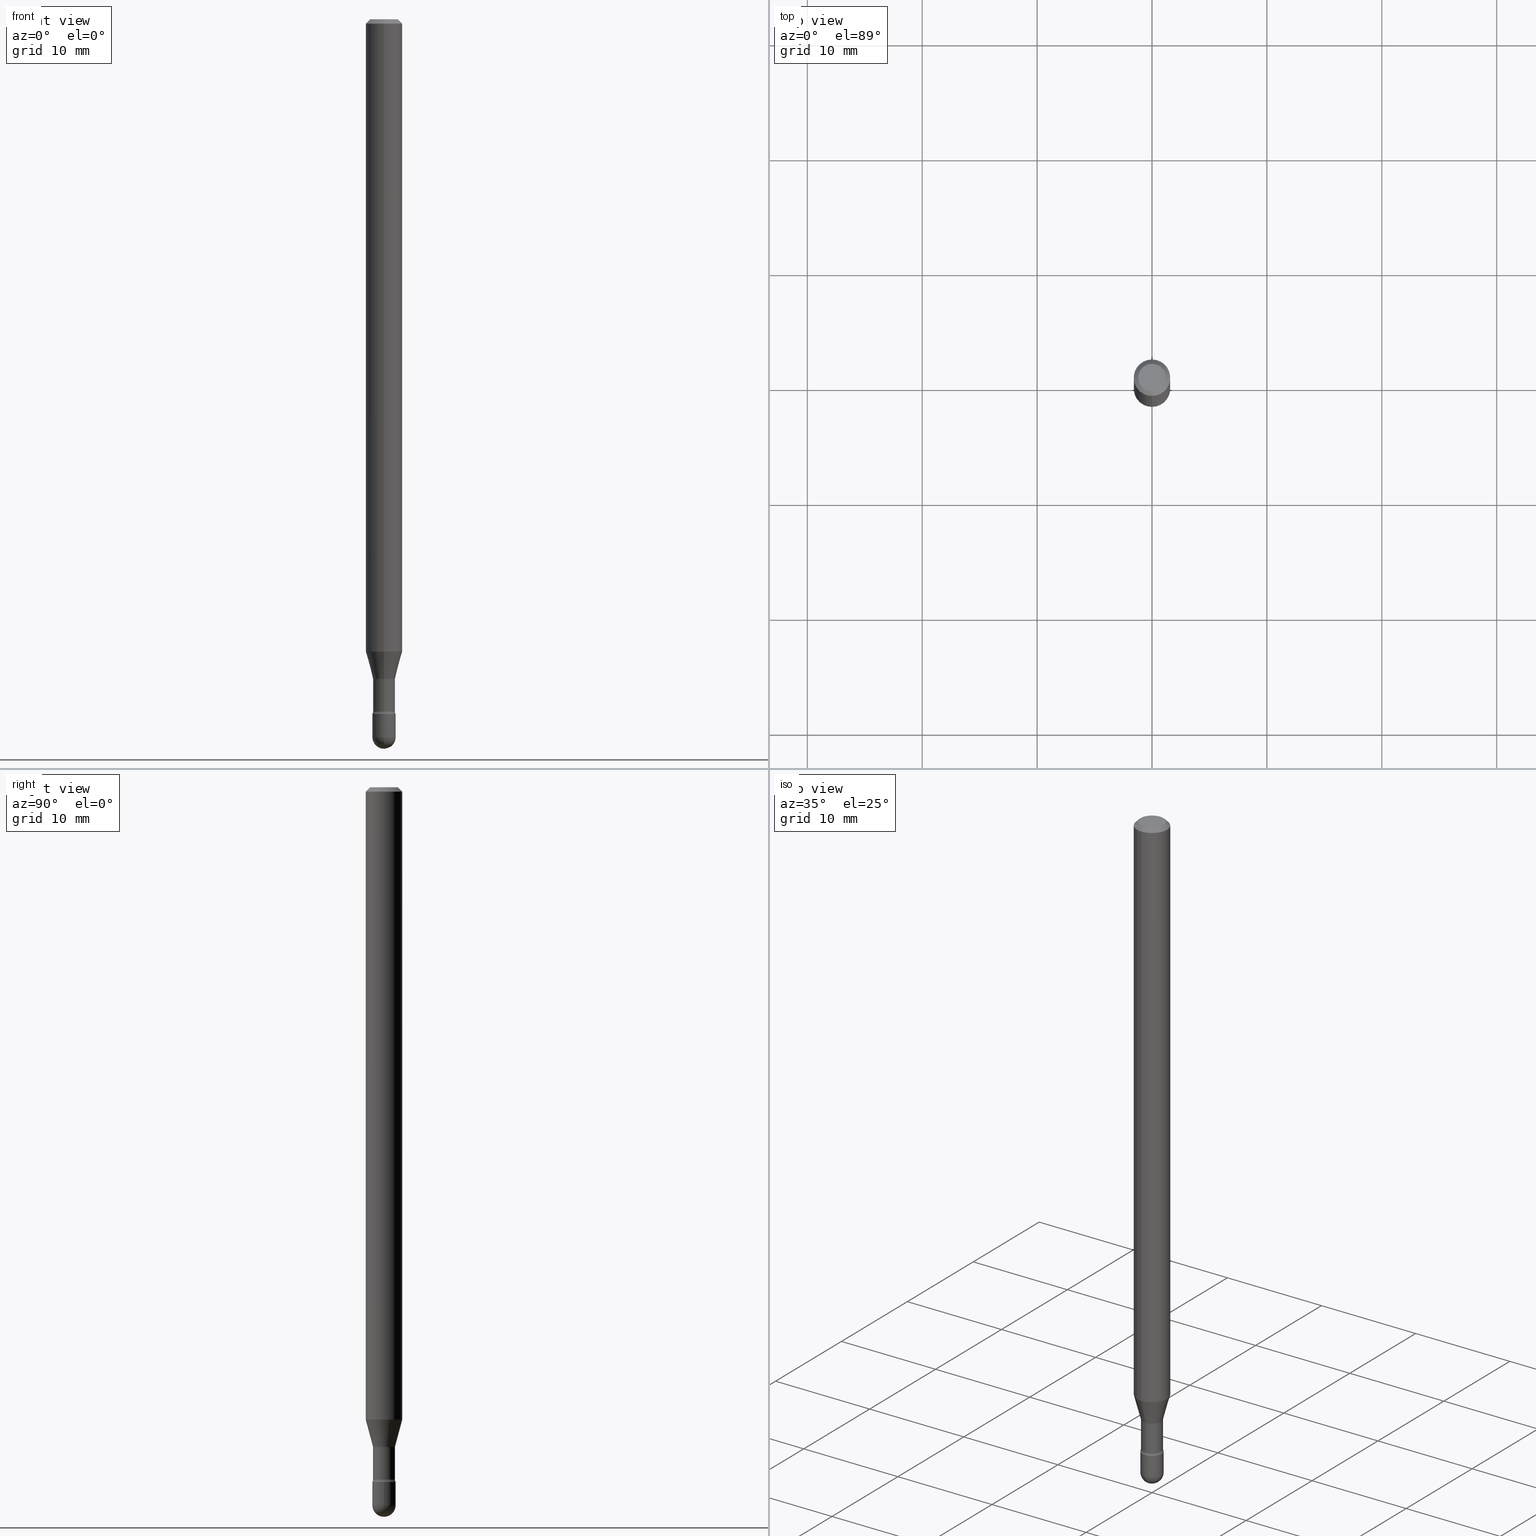
[diagram: canonical four-view strip — front | top / right | iso, engineering-drawing reading convention]
A machine part, canonical four-view strip (front | top / right | iso — engineering-drawing reading convention). The complete STEP part file that produces these views, byte-faithful:
ISO-10303-21;
HEADER;
FILE_DESCRIPTION (( 'STEP AP203' ),
    '1' );
FILE_NAME ('03823.STEP',
    '2024-04-09T20:37:01',
    ( '' ),
    ( '' ),
    'SwSTEP 2.0',
    'SolidWorks 2023',
    '' );
FILE_SCHEMA (( 'CONFIG_CONTROL_DESIGN' ));
ENDSEC;

DATA;
#1 = PERSON_AND_ORGANIZATION_ROLE ( 'design_supplier' ) ;
#2 = VERTEX_POINT ( 'NONE', #389 ) ;
#3 = EDGE_LOOP ( 'NONE', ( #249, #336, #305, #384 ) ) ;
#4 = ADVANCED_FACE ( 'NONE', ( #182 ), #362, .T. ) ;
#5 = EDGE_CURVE ( 'NONE', #97, #376, #102, .T. ) ;
#6 = ORIENTED_EDGE ( 'NONE', *, *, #70, .F. ) ;
#7 = MANIFOLD_SOLID_BREP ( 'Body-Move/Copy2[2]', #530 ) ;
#8 = DIRECTION ( 'NONE',  ( -6.982962677686266711E-15, -1.000000000000000000, 3.491484914929781509E-15 ) ) ;
#9 = VECTOR ( 'NONE', #114, 39.37007874015748143 ) ;
#10 = CC_DESIGN_SECURITY_CLASSIFICATION ( #231, ( #141 ) ) ;
#11 = PERSON_AND_ORGANIZATION_ROLE ( 'classification_officer' ) ;
#12 = ORIENTED_EDGE ( 'NONE', *, *, #112, .F. ) ;
#13 = EDGE_CURVE ( 'NONE', #565, #79, #402, .T. ) ;
#14 =( NAMED_UNIT ( * ) SI_UNIT ( $, .STERADIAN. ) SOLID_ANGLE_UNIT ( ) );
#15 = LOCAL_TIME ( 16, 37, 1.000000000000000000, #320 ) ;
#16 = DIRECTION ( 'NONE',  ( -1.000000000000000000, 6.982962677686265922E-15, -4.883557194083112340E-29 ) ) ;
#17 = VERTEX_POINT ( 'NONE', #424 ) ;
#18 = APPLICATION_PROTOCOL_DEFINITION ( 'international standard', 'config_control_design', 1994, #268 ) ;
#19 = DIRECTION ( 'NONE',  ( -6.982962677686265922E-15, -1.000000000000000000, 3.491484914929780720E-15 ) ) ;
#20 = MANIFOLD_SOLID_BREP ( 'Body-Move/Copy2[1]', #494 ) ;
#21 = DIRECTION ( 'NONE',  ( 1.839019923739600710E-15, 0.2588190451025250138, 0.9659258262890670910 ) ) ;
#22 = DIRECTION ( 'NONE',  ( 7.105427357601001859E-15, 1.000000000000000000, 0.000000000000000000 ) ) ;
#23 = AXIS2_PLACEMENT_3D ( 'NONE', #192, #419, #188 ) ;
#24 = DIRECTION ( 'NONE',  ( 2.445466309017186132E-29, -3.491484914929780326E-15, -1.000000000000000000 ) ) ;
#25 = LOCAL_TIME ( 16, 37, 1.000000000000000000, #414 ) ;
#26 = DIRECTION ( 'NONE',  ( -2.445466309017186132E-29, 3.491484914929780720E-15, 1.000000000000000000 ) ) ;
#27 = DIRECTION ( 'NONE',  ( 1.000000000000000000, -6.982962677686265922E-15, 4.876176775795935793E-29 ) ) ;
#28 = ORIENTED_EDGE ( 'NONE', *, *, #68, .F. ) ;
#29 = DIRECTION ( 'NONE',  ( 1.000000000000000000, -6.982962677686260400E-15, 0.000000000000000000 ) ) ;
#30 = EDGE_CURVE ( 'NONE', #38, #348, #160, .T. ) ;
#31 = DIRECTION ( 'NONE',  ( -2.445466309017186132E-29, 3.491484914929780720E-15, 1.000000000000000000 ) ) ;
#32 = ORIENTED_EDGE ( 'NONE', *, *, #495, .F. ) ;
#33 = DIRECTION ( 'NONE',  ( -1.000000000000000000, 7.105427357601001070E-15, -4.926315508542082329E-29 ) ) ;
#34 = DIRECTION ( 'NONE',  ( -2.445466309017186132E-29, 3.491484914929780720E-15, 1.000000000000000000 ) ) ;
#35 = DIRECTION ( 'NONE',  ( -1.000000000000000000, 6.982962677686265922E-15, -4.883557194083112340E-29 ) ) ;
#36 = CIRCLE ( 'NONE', #435, 0.01499999999999995955 ) ;
#37 = CIRCLE ( 'NONE', #536, 0.03760000000000000842 ) ;
#38 = VERTEX_POINT ( 'NONE', #508 ) ;
#39 = DIRECTION ( 'NONE',  ( 6.982962677686265922E-15, 1.000000000000000000, -3.483106191921935554E-15 ) ) ;
#40 = ORIENTED_EDGE ( 'NONE', *, *, #100, .F. ) ;
#41 = DIRECTION ( 'NONE',  ( -2.445466309017186132E-29, 3.491484914929780720E-15, 1.000000000000000000 ) ) ;
#42 = LINE ( 'NONE', #388, #117 ) ;
#43 = EDGE_LOOP ( 'NONE', ( #560, #130, #286, #89 ) ) ;
#44 = DIRECTION ( 'NONE',  ( -6.982962677686265922E-15, -1.000000000000000000, 3.491484914929780720E-15 ) ) ;
#45 = AXIS2_PLACEMENT_3D ( 'NONE', #173, #257, #95 ) ;
#46 = CARTESIAN_POINT ( 'NONE',  ( -1.169113584055446105E-44, 1.669184350826100908E-30, 4.780733988912460139E-16 ) ) ;
#47 = DIRECTION ( 'NONE',  ( -6.982962677686265922E-15, -1.000000000000000000, 3.491484914929781903E-15 ) ) ;
#48 = CC_DESIGN_DATE_AND_TIME_ASSIGNMENT ( #461, #72, ( #55 ) ) ;
#49 = ORIENTED_EDGE ( 'NONE', *, *, #219, .F. ) ;
#50 = VERTEX_POINT ( 'NONE', #65 ) ;
#51 = AXIS2_PLACEMENT_3D ( 'NONE', #157, #191, #111 ) ;
#52 = AXIS2_PLACEMENT_3D ( 'NONE', #104, #26, #503 ) ;
#53 = EDGE_CURVE ( 'NONE', #515, #264, #91, .T. ) ;
#54 = FACE_OUTER_BOUND ( 'NONE', #439, .T. ) ;
#55 = PRODUCT_DEFINITION ( 'UNKNOWN', '', #141, #86 ) ;
#56 = DIRECTION ( 'NONE',  ( 6.982962677686265922E-15, 1.000000000000000000, -6.829619984160649566E-15 ) ) ;
#57 = CIRCLE ( 'NONE', #51, 0.03999999999999999389 ) ;
#58 = ORIENTED_EDGE ( 'NONE', *, *, #469, .T. ) ;
#59 =( CONVERSION_BASED_UNIT ( 'INCH', #183 ) LENGTH_UNIT ( ) NAMED_UNIT ( #245 ) );
#60 = CARTESIAN_POINT ( 'NONE',  ( -4.364351673553388650E-16, -0.06250000000000759115, -2.167071934891535268 ) ) ;
#61 = ADVANCED_FACE ( 'NONE', ( #552 ), #485, .F. ) ;
#62 = DIRECTION ( 'NONE',  ( -6.982962677686266711E-15, -1.000000000000000000, 3.491484914929781509E-15 ) ) ;
#63 = PERSON_AND_ORGANIZATION ( #528, #149 ) ;
#64 = DIRECTION ( 'NONE',  ( -6.982962677686265922E-15, -1.000000000000000000, 3.491484914929779537E-15 ) ) ;
#65 = CARTESIAN_POINT ( 'NONE',  ( -2.793185071073923519E-16, -0.04000000000000827893, -2.379999999999999893 ) ) ;
#66 = PERSON_AND_ORGANIZATION ( #528, #149 ) ;
#67 = DIRECTION ( 'NONE',  ( -1.000000000000000000, 6.982962677686265922E-15, -4.883557194083112340E-29 ) ) ;
#68 = EDGE_CURVE ( 'NONE', #405, #465, #319, .T. ) ;
#69 = DIRECTION ( 'NONE',  ( -6.982962677686265922E-15, -1.000000000000000000, 0.000000000000000000 ) ) ;
#70 = EDGE_CURVE ( 'NONE', #515, #50, #36, .T. ) ;
#71 = VERTEX_POINT ( 'NONE', #109 ) ;
#72 = DATE_TIME_ROLE ( 'creation_date' ) ;
#73 = CARTESIAN_POINT ( 'NONE',  ( 6.015853263215436432E-29, -8.589044093554138346E-15, -2.459999999999999964 ) ) ;
#74 = DIRECTION ( 'NONE',  ( -6.982962677686265922E-15, -1.000000000000000000, 3.491484914929779537E-15 ) ) ;
#75 = ORIENTED_EDGE ( 'NONE', *, *, #265, .F. ) ;
#76 = PERSON_AND_ORGANIZATION_ROLE ( 'design_owner' ) ;
#77 = DIRECTION ( 'NONE',  ( -7.105427357601000281E-15, -1.000000000000000000, 0.000000000000000000 ) ) ;
#78 = CARTESIAN_POINT ( 'NONE',  ( 5.820209815460903594E-29, -8.309734097532877246E-15, -2.379999999999999893 ) ) ;
#79 = VERTEX_POINT ( 'NONE', #514 ) ;
#80 = CARTESIAN_POINT ( 'NONE',  ( 5.800312587032241644E-29, -8.281309132162736146E-15, -2.371861204020250025 ) ) ;
#81 = CARTESIAN_POINT ( 'NONE',  ( 5.820209815460903594E-29, -8.309734097532877246E-15, -2.379999999999999893 ) ) ;
#82 = AXIS2_PLACEMENT_3D ( 'NONE', #144, #143, #22 ) ;
#83 = CC_DESIGN_PERSON_AND_ORGANIZATION_ASSIGNMENT ( #315, #99, ( #141 ) ) ;
#84 = ORIENTED_EDGE ( 'NONE', *, *, #279, .F. ) ;
#85 = EDGE_CURVE ( 'NONE', #50, #258, #358, .T. ) ;
#86 = DESIGN_CONTEXT ( 'detailed design', #300, 'design' ) ;
#87 = EDGE_LOOP ( 'NONE', ( #299, #350, #532, #205 ) ) ;
#88 = LINE ( 'NONE', #472, #382 ) ;
#89 = ORIENTED_EDGE ( 'NONE', *, *, #538, .F. ) ;
#90 = PERSON_AND_ORGANIZATION ( #528, #149 ) ;
#91 = CIRCLE ( 'NONE', #211, 0.03760000000000005005 ) ;
#92 = CONICAL_SURFACE ( 'NONE', #52, 0.03811111260566397985, 0.2617993877991502960 ) ;
#93 = ORIENTED_EDGE ( 'NONE', *, *, #442, .T. ) ;
#94 = DIRECTION ( 'NONE',  ( 1.000000000000000000, -6.982962677686265922E-15, 4.876176775795935793E-29 ) ) ;
#95 = DIRECTION ( 'NONE',  ( 6.982962677686266711E-15, 1.000000000000000000, 0.000000000000000000 ) ) ;
#96 = COORDINATED_UNIVERSAL_TIME_OFFSET ( 5, 0, .BEHIND. ) ;
#97 = VERTEX_POINT ( 'NONE', #549 ) ;
#98 = CARTESIAN_POINT ( 'NONE',  ( 2.023534698755883827E-45, -2.889111307869081721E-31, -8.274686220743022469E-17 ) ) ;
#99 = PERSON_AND_ORGANIZATION_ROLE ( 'creator' ) ;
#100 = EDGE_CURVE ( 'NONE', #264, #17, #196, .T. ) ;
#101 = ORIENTED_EDGE ( 'NONE', *, *, #364, .F. ) ;
#102 = CIRCLE ( 'NONE', #459, 0.06250000000000000000 ) ;
#103 = AXIS2_PLACEMENT_3D ( 'NONE', #394, #272, #94 ) ;
#104 = CARTESIAN_POINT ( 'NONE',  ( 5.522089135765106853E-29, -7.884095906506312946E-15, -2.258092501787273498 ) ) ;
#105 = ORIENTED_EDGE ( 'NONE', *, *, #520, .T. ) ;
#106 = CARTESIAN_POINT ( 'NONE',  ( 5.531583134589060963E-29, -7.897650848381394584E-15, -2.261974787463811420 ) ) ;
#107 = AXIS2_PLACEMENT_3D ( 'NONE', #539, #146, #326 ) ;
#108 = CIRCLE ( 'NONE', #239, 0.06250000000000000000 ) ;
#109 = CARTESIAN_POINT ( 'NONE',  ( -2.661284769303949720E-16, -0.03811111260567186937, -2.258092501787273498 ) ) ;
#110 = FACE_OUTER_BOUND ( 'NONE', #393, .T. ) ;
#111 = DIRECTION ( 'NONE',  ( 1.000000000000000000, -6.982962677686260400E-15, 0.000000000000000000 ) ) ;
#112 = EDGE_CURVE ( 'NONE', #167, #405, #564, .T. ) ;
#113 = CARTESIAN_POINT ( 'NONE',  ( -0.03999999999999999389, -8.165167745696373001E-15, -2.459999999999999964 ) ) ;
#114 = DIRECTION ( 'NONE',  ( -2.445466309017185852E-29, 3.491484914929780326E-15, 1.000000000000000000 ) ) ;
#115 = EDGE_LOOP ( 'NONE', ( #174, #84, #342, #449 ) ) ;
#116 = SPHERICAL_SURFACE ( 'NONE', #221, 0.04000000000000004940 ) ;
#117 = VECTOR ( 'NONE', #302, 39.37007874015748143 ) ;
#118 = CIRCLE ( 'NONE', #397, 0.04000000000000000083 ) ;
#119 = DIRECTION ( 'NONE',  ( -2.445466309017186132E-29, 3.491484914929780720E-15, 1.000000000000000000 ) ) ;
#120 = ORIENTED_EDGE ( 'NONE', *, *, #228, .F. ) ;
#121 = CARTESIAN_POINT ( 'NONE',  ( -2.842170943039800282E-16, -0.04000000000000860506, -2.459999999999999520 ) ) ;
#122 = DIRECTION ( 'NONE',  ( -6.982962677686266711E-15, -1.000000000000000000, 0.000000000000000000 ) ) ;
#123 = DIRECTION ( 'NONE',  ( -2.445466309017186132E-29, 3.491484914929780720E-15, 1.000000000000000000 ) ) ;
#124 = ORIENTED_EDGE ( 'NONE', *, *, #5, .T. ) ;
#125 = ORIENTED_EDGE ( 'NONE', *, *, #219, .T. ) ;
#126 = AXIS2_PLACEMENT_3D ( 'NONE', #511, #119, #74 ) ;
#127 = VECTOR ( 'NONE', #535, 39.37007874015748143 ) ;
#128 = ORIENTED_EDGE ( 'NONE', *, *, #347, .T. ) ;
#129 = ORIENTED_EDGE ( 'NONE', *, *, #85, .F. ) ;
#130 = ORIENTED_EDGE ( 'NONE', *, *, #100, .T. ) ;
#131 = DIRECTION ( 'NONE',  ( -6.982962677686266711E-15, -1.000000000000000000, 0.000000000000000000 ) ) ;
#132 = AXIS2_PLACEMENT_3D ( 'NONE', #409, #334, #276 ) ;
#133 = DIRECTION ( 'NONE',  ( -6.982962677686265922E-15, -1.000000000000000000, 4.370956789862821150E-15 ) ) ;
#134 = CARTESIAN_POINT ( 'NONE',  ( -0.04000000000000000083, 2.842170943040400803E-16, -1.967574036101962509E-30 ) ) ;
#135 = APPROVAL_DATE_TIME ( #360, #155 ) ;
#136 = ORIENTED_EDGE ( 'NONE', *, *, #330, .F. ) ;
#137 = CALENDAR_DATE ( 2024, 9, 4 ) ;
#138 = VERTEX_POINT ( 'NONE', #372 ) ;
#139 = ADVANCED_FACE ( 'NONE', ( #417 ), #407, .T. ) ;
#140 = APPROVAL_PERSON_ORGANIZATION ( #408, #557, #547 ) ;
#141 = PRODUCT_DEFINITION_FORMATION_WITH_SPECIFIED_SOURCE ( 'ANY', '', #431, .NOT_KNOWN. ) ;
#142 = EDGE_CURVE ( 'NONE', #138, #97, #375, .T. ) ;
#143 = DIRECTION ( 'NONE',  ( 1.000000000000000000, -7.105427357601001070E-15, 4.926315552336512910E-29 ) ) ;
#144 = CARTESIAN_POINT ( 'NONE',  ( 3.737454790098706856E-16, 0.05259999999999172282, -2.371861204020250025 ) ) ;
#145 = CARTESIAN_POINT ( 'NONE',  ( 5.522089135765106853E-29, -7.884095906506312946E-15, -2.258092501787273498 ) ) ;
#146 = DIRECTION ( 'NONE',  ( -2.445468806185136597E-29, 3.491481338843145583E-15, 1.000000000000000000 ) ) ;
#147 = CIRCLE ( 'NONE', #554, 0.03811111260566397985 ) ;
#148 = CYLINDRICAL_SURFACE ( 'NONE', #229, 0.06250000000000000000 ) ;
#149 = ORGANIZATION ( 'UNSPECIFIED', 'UNSPECIFIED', '' ) ;
#150 = EDGE_CURVE ( 'NONE', #465, #480, #57, .T. ) ;
#151 = CARTESIAN_POINT ( 'NONE',  ( 2.793185071075109275E-16, 0.03999999999999143130, -2.460000000000000409 ) ) ;
#152 = DIRECTION ( 'NONE',  ( -2.445466309017185852E-29, 3.491484914929780326E-15, 1.000000000000000000 ) ) ;
#153 = PLANE ( 'NONE',  #132 ) ;
#154 = CYLINDRICAL_SURFACE ( 'NONE', #379, 0.04000000000000000083 ) ;
#155 = APPROVAL ( #483, 'UNSPECIFIED' ) ;
#156 = CARTESIAN_POINT ( 'NONE',  ( 2.793185071075088075E-16, 0.03999999999999169498, -2.380000000000000338 ) ) ;
#157 = CARTESIAN_POINT ( 'NONE',  ( 6.015853263215436432E-29, -8.589044093554138346E-15, -2.459999999999999964 ) ) ;
#158 = ORIENTED_EDGE ( 'NONE', *, *, #226, .T. ) ;
#159 = DIRECTION ( 'NONE',  ( -2.445466309017186132E-29, 3.491484914929780720E-15, 1.000000000000000000 ) ) ;
#160 = CIRCLE ( 'NONE', #301, 0.06250000000000000000 ) ;
#161 = AXIS2_PLACEMENT_3D ( 'NONE', #490, #225, #131 ) ;
#162 = DIRECTION ( 'NONE',  ( -2.445466309017186132E-29, 3.491484914929780720E-15, 1.000000000000000000 ) ) ;
#163 = CC_DESIGN_APPROVAL ( #155, ( #141 ) ) ;
#164 = DATE_AND_TIME ( #446, #15 ) ;
#165 = ORIENTED_EDGE ( 'NONE', *, *, #265, .T. ) ;
#166 = DATE_TIME_ROLE ( 'classification_date' ) ;
#167 = VERTEX_POINT ( 'NONE', #151 ) ;
#168 = ORIENTED_EDGE ( 'NONE', *, *, #68, .T. ) ;
#169 = CARTESIAN_POINT ( 'NONE',  ( 2.756905814749769602E-16, 0.03759999999999176501, -2.371861204020250025 ) ) ;
#170 = AXIS2_PLACEMENT_3D ( 'NONE', #78, #123, #367 ) ;
#171 = ADVANCED_FACE ( 'NONE', ( #280 ), #455, .F. ) ;
#172 = ORIENTED_EDGE ( 'NONE', *, *, #5, .F. ) ;
#173 = CARTESIAN_POINT ( 'NONE',  ( 6.015853263215436432E-29, -8.589044093554138346E-15, -2.459999999999999964 ) ) ;
#174 = ORIENTED_EDGE ( 'NONE', *, *, #491, .F. ) ;
#175 = DIRECTION ( 'NONE',  ( -2.445466309017186132E-29, 3.491484914929780720E-15, 1.000000000000000000 ) ) ;
#176 = CARTESIAN_POINT ( 'NONE',  ( -2.625593966809459669E-16, -0.03760000000000832815, -2.371861204020250025 ) ) ;
#177 = CONICAL_SURFACE ( 'NONE', #499, 0.06250000000000000000, 0.7853981633974483900 ) ;
#178 = EDGE_LOOP ( 'NONE', ( #129, #120 ) ) ;
#179 = CARTESIAN_POINT ( 'NONE',  ( -3.673038368462422947E-16, -0.05260000000000789738, -2.261974787463810976 ) ) ;
#180 = CC_DESIGN_PERSON_AND_ORGANIZATION_ASSIGNMENT ( #533, #11, ( #231 ) ) ;
#181 = COORDINATED_UNIVERSAL_TIME_OFFSET ( 5, 0, .BEHIND. ) ;
#182 = FACE_OUTER_BOUND ( 'NONE', #43, .T. ) ;
#183 = LENGTH_MEASURE_WITH_UNIT ( LENGTH_MEASURE( 0.02539999999999999897 ), #551 );
#184 = ADVANCED_FACE ( 'NONE', ( #546 ), #154, .T. ) ;
#185 = AXIS2_PLACEMENT_3D ( 'NONE', #98, #395, #8 ) ;
#186 = DIRECTION ( 'NONE',  ( -2.445466309017186132E-29, 3.491484914929780720E-15, 1.000000000000000000 ) ) ;
#187 = ORIENTED_EDGE ( 'NONE', *, *, #30, .F. ) ;
#188 = DIRECTION ( 'NONE',  ( 1.000000000000000000, 0.000000000000000000, 0.000000000000000000 ) ) ;
#189 = DIRECTION ( 'NONE',  ( -2.445468806185136877E-29, 3.491481338843145188E-15, 1.000000000000000000 ) ) ;
#190 = ADVANCED_FACE ( 'NONE', ( #339 ), #198, .T. ) ;
#191 = DIRECTION ( 'NONE',  ( -2.445468806185136597E-29, 3.491481338843145583E-15, 1.000000000000000000 ) ) ;
#192 = CARTESIAN_POINT ( 'NONE',  ( 0.000000000000000000, 0.000000000000000000, 0.000000000000000000 ) ) ;
#193 = CARTESIAN_POINT ( 'NONE',  ( -4.364351673553912750E-16, -0.06250000000000005551, -0.01499999999999986587 ) ) ;
#194 = CIRCLE ( 'NONE', #352, 0.06250000000000000000 ) ;
#195 = LOCAL_TIME ( 16, 37, 1.000000000000000000, #96 ) ;
#196 = LINE ( 'NONE', #335, #262 ) ;
#197 = DIRECTION ( 'NONE',  ( -6.982962677686265922E-15, -1.000000000000000000, 3.491484914929780326E-15 ) ) ;
#198 = CYLINDRICAL_SURFACE ( 'NONE', #126, 0.06250000000000000000 ) ;
#199 = EDGE_LOOP ( 'NONE', ( #471, #255 ) ) ;
#200 = CARTESIAN_POINT ( 'NONE',  ( 5.800312587032241644E-29, -8.281309132162736146E-15, -2.371861204020250025 ) ) ;
#201 = CARTESIAN_POINT ( 'NONE',  ( 3.668199463525799289E-31, -5.237227372394699799E-17, -0.01500000000000008271 ) ) ;
#202 = FACE_OUTER_BOUND ( 'NONE', #398, .T. ) ;
#203 = CIRCLE ( 'NONE', #327, 0.03760000000000000842 ) ;
#204 = CIRCLE ( 'NONE', #531, 0.04000000000000004940 ) ;
#205 = ORIENTED_EDGE ( 'NONE', *, *, #85, .T. ) ;
#206 = CARTESIAN_POINT ( 'NONE',  ( 5.820215758720625190E-29, -8.309725586446686731E-15, -2.379999999999999893 ) ) ;
#207 = ORIENTED_EDGE ( 'NONE', *, *, #366, .T. ) ;
#208 = EDGE_CURVE ( 'NONE', #260, #17, #203, .T. ) ;
#209 = EDGE_LOOP ( 'NONE', ( #49, #124, #105, #187 ) ) ;
#210 = CARTESIAN_POINT ( 'NONE',  ( -4.287811248607203282E-16, -0.06250000000000005551, -0.01499999999999986587 ) ) ;
#211 = AXIS2_PLACEMENT_3D ( 'NONE', #504, #296, #69 ) ;
#212 = CONICAL_SURFACE ( 'NONE', #161, 0.03811111260566397985, 0.2617993877991502960 ) ;
#213 = PERSON_AND_ORGANIZATION ( #528, #149 ) ;
#214 = ORIENTED_EDGE ( 'NONE', *, *, #340, .F. ) ;
#215 = ORIENTED_EDGE ( 'NONE', *, *, #538, .T. ) ;
#216 = ORIENTED_EDGE ( 'NONE', *, *, #298, .T. ) ;
#217 = AXIS2_PLACEMENT_3D ( 'NONE', #46, #175, #47 ) ;
#218 = SECURITY_CLASSIFICATION_LEVEL ( 'unclassified' ) ;
#219 = EDGE_CURVE ( 'NONE', #97, #38, #42, .T. ) ;
#220 = AXIS2_PLACEMENT_3D ( 'NONE', #179, #67, #404 ) ;
#221 = AXIS2_PLACEMENT_3D ( 'NONE', #537, #324, #452 ) ;
#222 = ORIENTED_EDGE ( 'NONE', *, *, #142, .T. ) ;
#223 = APPROVAL_PERSON_ORGANIZATION ( #516, #224, #250 ) ;
#224 = APPROVAL ( #297, 'UNSPECIFIED' ) ;
#225 = DIRECTION ( 'NONE',  ( -2.445466309017186132E-29, 3.491484914929780720E-15, 1.000000000000000000 ) ) ;
#226 = EDGE_CURVE ( 'NONE', #2, #167, #444, .T. ) ;
#227 = CARTESIAN_POINT ( 'NONE',  ( -2.625593966810038003E-16, -0.03760000000000002923, 6.093532316926059331E-16 ) ) ;
#228 = EDGE_CURVE ( 'NONE', #258, #50, #274, .T. ) ;
#229 = AXIS2_PLACEMENT_3D ( 'NONE', #281, #454, #64 ) ;
#230 = FACE_OUTER_BOUND ( 'NONE', #428, .T. ) ;
#231 = SECURITY_CLASSIFICATION ( '', '', #218 ) ;
#232 = ORIENTED_EDGE ( 'NONE', *, *, #364, .T. ) ;
#233 = FACE_OUTER_BOUND ( 'NONE', #518, .T. ) ;
#234 = DIRECTION ( 'NONE',  ( -6.982962677686265922E-15, -1.000000000000000000, 3.491484914929780720E-15 ) ) ;
#235 = APPLICATION_PROTOCOL_DEFINITION ( 'international standard', 'config_control_design', 1994, #300 ) ;
#236 = FACE_OUTER_BOUND ( 'NONE', #178, .T. ) ;
#237 = CARTESIAN_POINT ( 'NONE',  ( 3.316907271900976096E-16, 0.04749999999999999362, 3.181773488274336342E-17 ) ) ;
#238 = FACE_OUTER_BOUND ( 'NONE', #87, .T. ) ;
#239 = AXIS2_PLACEMENT_3D ( 'NONE', #247, #433, #476 ) ;
#240 = CARTESIAN_POINT ( 'NONE',  ( -3.673038368462396816E-16, -0.05260000000000828596, -2.371861204020249581 ) ) ;
#241 = ORIENTED_EDGE ( 'NONE', *, *, #520, .F. ) ;
#242 = CARTESIAN_POINT ( 'NONE',  ( 3.668199463525799289E-31, -5.237227372394699799E-17, -0.01500000000000008271 ) ) ;
#243 = ADVANCED_FACE ( 'NONE', ( #427 ), #177, .T. ) ;
#244 = DIRECTION ( 'NONE',  ( 6.982962677686265922E-15, 1.000000000000000000, -3.491484914929780326E-15 ) ) ;
#245 = DIMENSIONAL_EXPONENTS ( 1.000000000000000000, 0.000000000000000000, 0.000000000000000000, 0.000000000000000000, 0.000000000000000000, 0.000000000000000000, 0.000000000000000000 ) ;
#246 = ORIENTED_EDGE ( 'NONE', *, *, #463, .T. ) ;
#247 = CARTESIAN_POINT ( 'NONE',  ( 5.299501405993934666E-29, -7.566298970241487768E-15, -2.167071934891535712 ) ) ;
#248 = DIRECTION ( 'NONE',  ( -2.445466309017185852E-29, 3.491484914929780326E-15, 1.000000000000000000 ) ) ;
#249 = ORIENTED_EDGE ( 'NONE', *, *, #13, .F. ) ;
#250 = APPROVAL_ROLE ( '' ) ;
#251 = DIRECTION ( 'NONE',  ( -2.445466309017186132E-29, 3.491484914929780720E-15, 1.000000000000000000 ) ) ;
#252 = CIRCLE ( 'NONE', #396, 0.03811111260566397985 ) ;
#253 = VECTOR ( 'NONE', #189, 39.37007874015748143 ) ;
#254 = SHAPE_DEFINITION_REPRESENTATION ( #558, #507 ) ;
#255 = ORIENTED_EDGE ( 'NONE', *, *, #13, .T. ) ;
#256 = DIRECTION ( 'NONE',  ( 7.105427357601001859E-15, 1.000000000000000000, 0.000000000000000000 ) ) ;
#257 = DIRECTION ( 'NONE',  ( 1.000000000000000000, -6.982962677686265922E-15, 4.883557194083112340E-29 ) ) ;
#258 = VERTEX_POINT ( 'NONE', #429 ) ;
#259 = DIRECTION ( 'NONE',  ( -2.445468806185136597E-29, 3.491481338843145583E-15, 1.000000000000000000 ) ) ;
#260 = VERTEX_POINT ( 'NONE', #562 ) ;
#261 = DIRECTION ( 'NONE',  ( -4.851104656540964275E-15, -0.7071067811865500152, -0.7071067811865450192 ) ) ;
#262 = VECTOR ( 'NONE', #248, 39.37007874015748143 ) ;
#263 = TOROIDAL_SURFACE ( 'NONE', #275, 0.05260000000000000092, 0.01500000000000001853 ) ;
#264 = VERTEX_POINT ( 'NONE', #169 ) ;
#265 = EDGE_CURVE ( 'NONE', #138, #71, #252, .T. ) ;
#266 = CALENDAR_DATE ( 2024, 9, 4 ) ;
#267 = ORIENTED_EDGE ( 'NONE', *, *, #399, .F. ) ;
#268 = APPLICATION_CONTEXT ( 'configuration controlled 3d designs of mechanical parts and assemblies' ) ;
#269 = ORIENTED_EDGE ( 'NONE', *, *, #228, .T. ) ;
#270 = VECTOR ( 'NONE', #152, 39.37007874015748143 ) ;
#271 = FACE_OUTER_BOUND ( 'NONE', #380, .T. ) ;
#272 = DIRECTION ( 'NONE',  ( -2.445468806185136597E-29, 3.491481338843145583E-15, 1.000000000000000000 ) ) ;
#273 = CARTESIAN_POINT ( 'NONE',  ( 5.299501405993934666E-29, -7.566298970241487768E-15, -2.167071934891535712 ) ) ;
#274 = CIRCLE ( 'NONE', #425, 0.04000000000000000083 ) ;
#275 = AXIS2_PLACEMENT_3D ( 'NONE', #517, #41, #44 ) ;
#276 = DIRECTION ( 'NONE',  ( 1.000000000000000000, -6.982962677686265922E-15, 4.876176775795935793E-29 ) ) ;
#277 = CARTESIAN_POINT ( 'NONE',  ( -1.169113584055446105E-44, 1.669184350826100908E-30, 4.780733988912460139E-16 ) ) ;
#278 = DIRECTION ( 'NONE',  ( -2.445468806185136597E-29, 3.491481338843145583E-15, 1.000000000000000000 ) ) ;
#279 = EDGE_CURVE ( 'NONE', #71, #138, #147, .T. ) ;
#280 = FACE_OUTER_BOUND ( 'NONE', #199, .T. ) ;
#281 = CARTESIAN_POINT ( 'NONE',  ( -1.169113584055446105E-44, 1.669184350826100908E-30, 4.780733988912460139E-16 ) ) ;
#282 = CARTESIAN_POINT ( 'NONE',  ( 0.000000000000000000, 0.000000000000000000, 0.000000000000000000 ) ) ;
#283 = UNCERTAINTY_MEASURE_WITH_UNIT (LENGTH_MEASURE( 1.000000000000000082E-05 ), #59, 'distance_accuracy_value', 'NONE');
#284 = LINE ( 'NONE', #227, #270 ) ;
#285 = AXIS2_PLACEMENT_3D ( 'NONE', #237, #24, #244 ) ;
#286 = ORIENTED_EDGE ( 'NONE', *, *, #208, .F. ) ;
#287 = CALENDAR_DATE ( 2024, 9, 4 ) ;
#288 = DIRECTION ( 'NONE',  ( -2.445468806185136597E-29, 3.491481338843145583E-15, 1.000000000000000000 ) ) ;
#289 = CIRCLE ( 'NONE', #522, 0.04000000000000000083 ) ;
#290 = CARTESIAN_POINT ( 'NONE',  ( 5.522089135765106853E-29, -7.884095906506312946E-15, -2.258092501787273498 ) ) ;
#291 = LOCAL_TIME ( 16, 37, 1.000000000000000000, #181 ) ;
#292 = DIRECTION ( 'NONE',  ( -2.445466309017186132E-29, 3.491484914929780720E-15, 1.000000000000000000 ) ) ;
#293 = CARTESIAN_POINT ( 'NONE',  ( 0.04000000000000000083, -8.589044093554136769E-15, -2.379999999999999893 ) ) ;
#294 = LINE ( 'NONE', #210, #496 ) ;
#295 = CC_DESIGN_DATE_AND_TIME_ASSIGNMENT ( #556, #166, ( #231 ) ) ;
#296 = DIRECTION ( 'NONE',  ( -2.445466309017186132E-29, 3.491484914929780720E-15, 1.000000000000000000 ) ) ;
#297 = APPROVAL_STATUS ( 'not_yet_approved' ) ;
#298 = EDGE_CURVE ( 'NONE', #71, #376, #477, .T. ) ;
#299 = ORIENTED_EDGE ( 'NONE', *, *, #366, .F. ) ;
#300 = APPLICATION_CONTEXT ( 'configuration controlled 3d designs of mechanical parts and assemblies' ) ;
#301 = AXIS2_PLACEMENT_3D ( 'NONE', #201, #368, #411 ) ;
#302 = DIRECTION ( 'NONE',  ( -2.445466309017185852E-29, 3.491484914929780326E-15, 1.000000000000000000 ) ) ;
#303 = ORIENTED_EDGE ( 'NONE', *, *, #491, .T. ) ;
#304 = CARTESIAN_POINT ( 'NONE',  ( -2.661284769303949720E-16, -0.03811111260567186937, -2.258092501787273498 ) ) ;
#305 = ORIENTED_EDGE ( 'NONE', *, *, #399, .T. ) ;
#306 = ADVANCED_FACE ( 'NONE', ( #271 ), #212, .T. ) ;
#307 = DIRECTION ( 'NONE',  ( -6.982962677686265922E-15, -1.000000000000000000, 6.829619984160658243E-15 ) ) ;
#308 = VERTEX_POINT ( 'NONE', #357 ) ;
#309 = LINE ( 'NONE', #134, #460 ) ;
#310 = VECTOR ( 'NONE', #21, 39.37007874015748143 ) ;
#311 = AXIS2_PLACEMENT_3D ( 'NONE', #200, #548, #19 ) ;
#312 = CC_DESIGN_APPROVAL ( #224, ( #231 ) ) ;
#313 = CARTESIAN_POINT ( 'NONE',  ( 2.023534698755883827E-45, -2.889111307869081721E-31, -8.274686220743022469E-17 ) ) ;
#314 = DIRECTION ( 'NONE',  ( -2.445468806185136877E-29, 3.491481338843145188E-15, 1.000000000000000000 ) ) ;
#315 = PERSON_AND_ORGANIZATION ( #528, #149 ) ;
#316 = ORIENTED_EDGE ( 'NONE', *, *, #30, .T. ) ;
#317 = EDGE_CURVE ( 'NONE', #405, #308, #309, .T. ) ;
#318 = ORIENTED_EDGE ( 'NONE', *, *, #298, .F. ) ;
#319 = CIRCLE ( 'NONE', #412, 0.03999999999999999389 ) ;
#320 = COORDINATED_UNIVERSAL_TIME_OFFSET ( 5, 0, .BEHIND. ) ;
#321 =( GEOMETRIC_REPRESENTATION_CONTEXT ( 3 ) GLOBAL_UNCERTAINTY_ASSIGNED_CONTEXT ( ( #283 ) ) GLOBAL_UNIT_ASSIGNED_CONTEXT ( ( #59, #369, #14 ) ) REPRESENTATION_CONTEXT ( 'NONE', 'WORKASPACE' ) );
#322 = CC_DESIGN_PERSON_AND_ORGANIZATION_ASSIGNMENT ( #63, #76, ( #431 ) ) ;
#323 = ORIENTED_EDGE ( 'NONE', *, *, #150, .T. ) ;
#324 = DIRECTION ( 'NONE',  ( -1.000000000000000000, 6.982962677686265922E-15, -4.883557194083112340E-29 ) ) ;
#325 = DIRECTION ( 'NONE',  ( -6.982962677686265922E-15, -1.000000000000000000, 3.483106191921935554E-15 ) ) ;
#326 = DIRECTION ( 'NONE',  ( 1.000000000000000000, -6.982962677686260400E-15, 0.000000000000000000 ) ) ;
#327 = AXIS2_PLACEMENT_3D ( 'NONE', #421, #31, #521 ) ;
#328 = AXIS2_PLACEMENT_3D ( 'NONE', #423, #351, #256 ) ;
#329 = FACE_OUTER_BOUND ( 'NONE', #385, .T. ) ;
#330 = EDGE_CURVE ( 'NONE', #79, #565, #512, .T. ) ;
#331 = CARTESIAN_POINT ( 'NONE',  ( 5.531588783120004822E-29, -7.897642759363587821E-15, -2.261974787463811420 ) ) ;
#332 = CARTESIAN_POINT ( 'NONE',  ( -4.364351673553916201E-16, -0.06250000000000000000, 6.962912060743572596E-16 ) ) ;
#333 = CALENDAR_DATE ( 2024, 9, 4 ) ;
#334 = DIRECTION ( 'NONE',  ( -2.438088387897960049E-29, 3.491481338843145188E-15, 1.000000000000000000 ) ) ;
#335 = CARTESIAN_POINT ( 'NONE',  ( 2.671640686457978283E-16, 0.03760000000000002923, 3.467935660898862427E-16 ) ) ;
#336 = ORIENTED_EDGE ( 'NONE', *, *, #467, .T. ) ;
#337 = PERSON_AND_ORGANIZATION_ROLE ( 'creator' ) ;
#338 = CARTESIAN_POINT ( 'NONE',  ( 0.04000000000000000083, -2.793185071074506290E-16, 1.950470710318374387E-30 ) ) ;
#339 = FACE_OUTER_BOUND ( 'NONE', #355, .T. ) ;
#340 = EDGE_CURVE ( 'NONE', #71, #260, #343, .T. ) ;
#341 = AXIS2_PLACEMENT_3D ( 'NONE', #313, #378, #62 ) ;
#342 = ORIENTED_EDGE ( 'NONE', *, *, #340, .T. ) ;
#343 = CIRCLE ( 'NONE', #220, 0.01500000000000001853 ) ;
#344 = CARTESIAN_POINT ( 'NONE',  ( 6.015853263215436432E-29, -8.589044093554138346E-15, -2.459999999999999964 ) ) ;
#345 = EDGE_LOOP ( 'NONE', ( #246, #232 ) ) ;
#346 = DIRECTION ( 'NONE',  ( -6.982962677686265922E-15, -1.000000000000000000, 0.000000000000000000 ) ) ;
#347 = EDGE_CURVE ( 'NONE', #17, #260, #37, .T. ) ;
#348 = VERTEX_POINT ( 'NONE', #193 ) ;
#349 = ADVANCED_FACE ( 'NONE', ( #230 ), #116, .T. ) ;
#350 = ORIENTED_EDGE ( 'NONE', *, *, #53, .F. ) ;
#351 = DIRECTION ( 'NONE',  ( 1.000000000000000000, -7.105427357601001070E-15, 4.926315552336512910E-29 ) ) ;
#352 = AXIS2_PLACEMENT_3D ( 'NONE', #242, #186, #325 ) ;
#353 = APPROVAL_DATE_TIME ( #164, #224 ) ;
#354 = EDGE_LOOP ( 'NONE', ( #75, #303, #128, #214 ) ) ;
#355 = EDGE_LOOP ( 'NONE', ( #534, #125, #267, #241 ) ) ;
#356 = ORIENTED_EDGE ( 'NONE', *, *, #347, .F. ) ;
#357 = CARTESIAN_POINT ( 'NONE',  ( -0.04000000000000000083, -8.165167745696373001E-15, -2.379999999999999893 ) ) ;
#358 = CIRCLE ( 'NONE', #170, 0.04000000000000000083 ) ;
#359 = AXIS2_PLACEMENT_3D ( 'NONE', #566, #526, #346 ) ;
#360 = DATE_AND_TIME ( #266, #195 ) ;
#361 = ORIENTED_EDGE ( 'NONE', *, *, #381, .T. ) ;
#362 = CYLINDRICAL_SURFACE ( 'NONE', #217, 0.03760000000000002923 ) ;
#363 = PRODUCT_RELATED_PRODUCT_CATEGORY ( 'detail', '', ( #431 ) ) ;
#364 = EDGE_CURVE ( 'NONE', #308, #555, #289, .T. ) ;
#365 = TOROIDAL_SURFACE ( 'NONE', #451, 0.05260000000000000786, 0.01499999999999995955 ) ;
#366 = EDGE_CURVE ( 'NONE', #264, #258, #502, .T. ) ;
#367 = DIRECTION ( 'NONE',  ( -6.982962677686265922E-15, -1.000000000000000000, 6.829619984160658243E-15 ) ) ;
#368 = DIRECTION ( 'NONE',  ( -2.445466309017186132E-29, 3.491484914929780720E-15, 1.000000000000000000 ) ) ;
#369 =( NAMED_UNIT ( * ) PLANE_ANGLE_UNIT ( ) SI_UNIT ( $, .RADIAN. ) );
#370 = AXIS2_PLACEMENT_3D ( 'NONE', #156, #457, #197 ) ;
#371 = CARTESIAN_POINT ( 'NONE',  ( 5.820215758720625190E-29, -8.309725586446686731E-15, -2.379999999999999893 ) ) ;
#372 = CARTESIAN_POINT ( 'NONE',  ( 3.574424759935341155E-16, 0.03811111260565609726, -2.258092501787273498 ) ) ;
#373 = DIRECTION ( 'NONE',  ( 2.445466309017186132E-29, -3.491484914929780720E-15, -1.000000000000000000 ) ) ;
#374 = ADVANCED_FACE ( 'NONE', ( #233 ), #543, .T. ) ;
#375 = LINE ( 'NONE', #453, #310 ) ;
#376 = VERTEX_POINT ( 'NONE', #60 ) ;
#377 = MECHANICAL_CONTEXT ( 'NONE', #268, 'mechanical' ) ;
#378 = DIRECTION ( 'NONE',  ( -2.445466309017186132E-29, 3.491484914929780720E-15, 1.000000000000000000 ) ) ;
#379 = AXIS2_PLACEMENT_3D ( 'NONE', #282, #458, #27 ) ;
#380 = EDGE_LOOP ( 'NONE', ( #418, #222, #422, #318 ) ) ;
#381 = EDGE_CURVE ( 'NONE', #480, #167, #426, .T. ) ;
#382 = VECTOR ( 'NONE', #481, 39.37007874015748143 ) ;
#383 = ADVANCED_FACE ( 'NONE', ( #110 ), #415, .T. ) ;
#384 = ORIENTED_EDGE ( 'NONE', *, *, #442, .F. ) ;
#385 = EDGE_LOOP ( 'NONE', ( #443, #165, #216, #172 ) ) ;
#386 = DIRECTION ( 'NONE',  ( -6.982962677686265922E-15, -1.000000000000000000, 3.491484914929780720E-15 ) ) ;
#387 = ORIENTED_EDGE ( 'NONE', *, *, #391, .F. ) ;
#388 = CARTESIAN_POINT ( 'NONE',  ( 4.440892098500625669E-16, 0.06250000000000000000, 2.598555917081347682E-16 ) ) ;
#389 = CARTESIAN_POINT ( 'NONE',  ( 6.115382348041200269E-29, -8.726254053509568220E-15, -2.500000000000000000 ) ) ;
#390 = CYLINDRICAL_SURFACE ( 'NONE', #103, 0.04000000000000000083 ) ;
#391 = EDGE_CURVE ( 'NONE', #480, #555, #406, .T. ) ;
#392 = EDGE_LOOP ( 'NONE', ( #40, #525, #215, #356 ) ) ;
#393 = EDGE_LOOP ( 'NONE', ( #493, #58, #28, #12 ) ) ;
#394 = CARTESIAN_POINT ( 'NONE',  ( 0.000000000000000000, 0.000000000000000000, 0.000000000000000000 ) ) ;
#395 = DIRECTION ( 'NONE',  ( -2.445466309017186132E-29, 3.491484914929780720E-15, 1.000000000000000000 ) ) ;
#396 = AXIS2_PLACEMENT_3D ( 'NONE', #290, #159, #122 ) ;
#397 = AXIS2_PLACEMENT_3D ( 'NONE', #206, #259, #561 ) ;
#398 = EDGE_LOOP ( 'NONE', ( #32, #207, #269, #6 ) ) ;
#399 = EDGE_CURVE ( 'NONE', #348, #38, #194, .T. ) ;
#400 = ADVANCED_FACE ( 'NONE', ( #238 ), #486, .F. ) ;
#401 = ADVANCED_FACE ( 'NONE', ( #498 ), #153, .T. ) ;
#402 = CIRCLE ( 'NONE', #341, 0.04749999999999999362 ) ;
#403 = AXIS2_PLACEMENT_3D ( 'NONE', #510, #373, #506 ) ;
#404 = DIRECTION ( 'NONE',  ( -6.982962677686267499E-15, -1.000000000000000000, 0.000000000000000000 ) ) ;
#405 = VERTEX_POINT ( 'NONE', #113 ) ;
#406 = LINE ( 'NONE', #338, #253 ) ;
#407 = CYLINDRICAL_SURFACE ( 'NONE', #475, 0.03760000000000002923 ) ;
#408 = PERSON_AND_ORGANIZATION ( #528, #149 ) ;
#409 = CARTESIAN_POINT ( 'NONE',  ( 5.820215758720625190E-29, -8.309725586446686731E-15, -2.379999999999999893 ) ) ;
#410 = ADVANCED_FACE ( 'NONE', ( #540 ), #148, .T. ) ;
#411 = DIRECTION ( 'NONE',  ( -6.982962677686265922E-15, -1.000000000000000000, 3.483106191921935554E-15 ) ) ;
#412 = AXIS2_PLACEMENT_3D ( 'NONE', #344, #542, #464 ) ;
#413 = AXIS2_PLACEMENT_3D ( 'NONE', #73, #288, #29 ) ;
#414 = COORDINATED_UNIVERSAL_TIME_OFFSET ( 5, 0, .BEHIND. ) ;
#415 = SPHERICAL_SURFACE ( 'NONE', #541, 0.04000000000000004940 ) ;
#416 = ADVANCED_FACE ( 'NONE', ( #329 ), #92, .T. ) ;
#417 = FACE_OUTER_BOUND ( 'NONE', #392, .T. ) ;
#418 = ORIENTED_EDGE ( 'NONE', *, *, #279, .T. ) ;
#419 = DIRECTION ( 'NONE',  ( 0.000000000000000000, 0.000000000000000000, 1.000000000000000000 ) ) ;
#420 = PLANE ( 'NONE',  #370 ) ;
#421 = CARTESIAN_POINT ( 'NONE',  ( 5.531583134589060963E-29, -7.897650848381394584E-15, -2.261974787463811420 ) ) ;
#422 = ORIENTED_EDGE ( 'NONE', *, *, #473, .F. ) ;
#423 = CARTESIAN_POINT ( 'NONE',  ( 3.737454790098679246E-16, 0.05259999999999210446, -2.261974787463811420 ) ) ;
#424 = CARTESIAN_POINT ( 'NONE',  ( 2.671640686458557110E-16, 0.03759999999999210502, -2.261974787463811420 ) ) ;
#425 = AXIS2_PLACEMENT_3D ( 'NONE', #81, #527, #307 ) ;
#426 = CIRCLE ( 'NONE', #413, 0.03999999999999999389 ) ;
#427 = FACE_OUTER_BOUND ( 'NONE', #3, .T. ) ;
#428 = EDGE_LOOP ( 'NONE', ( #559, #158, #441, #432 ) ) ;
#429 = CARTESIAN_POINT ( 'NONE',  ( 2.842170943040980615E-16, 0.03999999999999166722, -2.380000000000000338 ) ) ;
#430 = EDGE_LOOP ( 'NONE', ( #484, #489, #513, #387, #361 ) ) ;
#431 = PRODUCT ( '03823', '03823', '', ( #377 ) ) ;
#432 = ORIENTED_EDGE ( 'NONE', *, *, #150, .F. ) ;
#433 = DIRECTION ( 'NONE',  ( -2.445466309017186132E-29, 3.491484914929780720E-15, 1.000000000000000000 ) ) ;
#434 = ADVANCED_FACE ( 'NONE', ( #236 ), #420, .F. ) ;
#435 = AXIS2_PLACEMENT_3D ( 'NONE', #240, #35, #470 ) ;
#436 = CIRCLE ( 'NONE', #328, 0.01500000000000001853 ) ;
#437 = APPROVAL_PERSON_ORGANIZATION ( #90, #155, #488 ) ;
#438 = DIRECTION ( 'NONE',  ( 2.445466309017186132E-29, -3.491484914929780720E-15, -1.000000000000000000 ) ) ;
#439 = EDGE_LOOP ( 'NONE', ( #479, #168, #323, #523, #101 ) ) ;
#440 = LINE ( 'NONE', #332, #9 ) ;
#441 = ORIENTED_EDGE ( 'NONE', *, *, #381, .F. ) ;
#442 = EDGE_CURVE ( 'NONE', #79, #38, #88, .T. ) ;
#443 = ORIENTED_EDGE ( 'NONE', *, *, #142, .F. ) ;
#444 = CIRCLE ( 'NONE', #45, 0.04000000000000004940 ) ;
#445 = CIRCLE ( 'NONE', #359, 0.03760000000000005005 ) ;
#446 = CALENDAR_DATE ( 2024, 9, 4 ) ;
#447 = ADVANCED_FACE ( 'NONE', ( #202 ), #365, .F. ) ;
#448 = CARTESIAN_POINT ( 'NONE',  ( 6.015853263215436432E-29, -8.589044093554138346E-15, -2.459999999999999964 ) ) ;
#449 = ORIENTED_EDGE ( 'NONE', *, *, #208, .T. ) ;
#450 = CC_DESIGN_PERSON_AND_ORGANIZATION_ASSIGNMENT ( #66, #337, ( #55 ) ) ;
#451 = AXIS2_PLACEMENT_3D ( 'NONE', #80, #251, #386 ) ;
#452 = DIRECTION ( 'NONE',  ( 6.982962677686265922E-15, 1.000000000000000000, -6.829619984160649566E-15 ) ) ;
#453 = CARTESIAN_POINT ( 'NONE',  ( 2.707957421369524653E-16, 0.03811111260565609726, -2.258092501787273498 ) ) ;
#454 = DIRECTION ( 'NONE',  ( -2.445466309017186132E-29, 3.491484914929780720E-15, 1.000000000000000000 ) ) ;
#455 = PLANE ( 'NONE',  #285 ) ;
#456 = APPROVAL_DATE_TIME ( #505, #557 ) ;
#457 = DIRECTION ( 'NONE',  ( -2.445466309017186132E-29, 3.491484914929780326E-15, 1.000000000000000000 ) ) ;
#458 = DIRECTION ( 'NONE',  ( -2.445468806185136597E-29, 3.491481338843145583E-15, 1.000000000000000000 ) ) ;
#459 = AXIS2_PLACEMENT_3D ( 'NONE', #273, #529, #133 ) ;
#460 = VECTOR ( 'NONE', #314, 39.37007874015748143 ) ;
#461 = DATE_AND_TIME ( #287, #25 ) ;
#462 = DIRECTION ( 'NONE',  ( -6.982962677686265922E-15, -1.000000000000000000, 0.000000000000000000 ) ) ;
#463 = EDGE_CURVE ( 'NONE', #555, #308, #118, .T. ) ;
#464 = DIRECTION ( 'NONE',  ( 1.000000000000000000, -6.982962677686260400E-15, 0.000000000000000000 ) ) ;
#465 = VERTEX_POINT ( 'NONE', #121 ) ;
#466 = CARTESIAN_POINT ( 'NONE',  ( 6.015853263215436432E-29, -8.589044093554138346E-15, -2.459999999999999964 ) ) ;
#467 = EDGE_CURVE ( 'NONE', #565, #348, #294, .T. ) ;
#468 = DIRECTION ( 'NONE',  ( -6.982962677686266711E-15, -1.000000000000000000, 0.000000000000000000 ) ) ;
#469 = EDGE_CURVE ( 'NONE', #2, #465, #204, .T. ) ;
#470 = DIRECTION ( 'NONE',  ( -6.982962677686266711E-15, -1.000000000000000000, 0.000000000000000000 ) ) ;
#471 = ORIENTED_EDGE ( 'NONE', *, *, #330, .T. ) ;
#472 = CARTESIAN_POINT ( 'NONE',  ( 4.364351673553919652E-16, 0.06249999999999995143, -0.01500000000000030129 ) ) ;
#473 = EDGE_CURVE ( 'NONE', #376, #97, #108, .T. ) ;
#474 = CARTESIAN_POINT ( 'NONE',  ( -3.773273898774340269E-16, -0.04749999999999999362, 8.309867125173437430E-17 ) ) ;
#475 = AXIS2_PLACEMENT_3D ( 'NONE', #277, #292, #501 ) ;
#476 = DIRECTION ( 'NONE',  ( -6.982962677686265922E-15, -1.000000000000000000, 4.370956789862821150E-15 ) ) ;
#477 = LINE ( 'NONE', #304, #127 ) ;
#478 = CC_DESIGN_APPROVAL ( #557, ( #55 ) ) ;
#479 = ORIENTED_EDGE ( 'NONE', *, *, #317, .F. ) ;
#480 = VERTEX_POINT ( 'NONE', #519 ) ;
#481 = DIRECTION ( 'NONE',  ( 4.937700262164548042E-15, 0.7071067811865451302, -0.7071067811865499042 ) ) ;
#482 = CARTESIAN_POINT ( 'NONE',  ( 3.668199463525799289E-31, -5.237227372394699799E-17, -0.01500000000000008271 ) ) ;
#483 = APPROVAL_STATUS ( 'not_yet_approved' ) ;
#484 = ORIENTED_EDGE ( 'NONE', *, *, #112, .T. ) ;
#485 = TOROIDAL_SURFACE ( 'NONE', #553, 0.05260000000000000092, 0.01500000000000001853 ) ;
#486 = TOROIDAL_SURFACE ( 'NONE', #311, 0.05260000000000000786, 0.01499999999999995955 ) ;
#487 = LOCAL_TIME ( 16, 37, 1.000000000000000000, #544 ) ;
#488 = APPROVAL_ROLE ( '' ) ;
#489 = ORIENTED_EDGE ( 'NONE', *, *, #317, .T. ) ;
#490 = CARTESIAN_POINT ( 'NONE',  ( 5.522089135765106853E-29, -7.884095906506312946E-15, -2.258092501787273498 ) ) ;
#491 = EDGE_CURVE ( 'NONE', #138, #17, #436, .T. ) ;
#492 = ADVANCED_FACE ( 'NONE', ( #524 ), #263, .F. ) ;
#493 = ORIENTED_EDGE ( 'NONE', *, *, #226, .F. ) ;
#494 = CLOSED_SHELL ( 'NONE', ( #184, #383, #401, #349, #500 ) ) ;
#495 = EDGE_CURVE ( 'NONE', #264, #515, #445, .T. ) ;
#496 = VECTOR ( 'NONE', #261, 39.37007874015748143 ) ;
#497 = DIRECTION ( 'NONE',  ( -2.445466309017186132E-29, 3.491484914929780720E-15, 1.000000000000000000 ) ) ;
#498 = FACE_OUTER_BOUND ( 'NONE', #345, .T. ) ;
#499 = AXIS2_PLACEMENT_3D ( 'NONE', #482, #438, #39 ) ;
#500 = ADVANCED_FACE ( 'NONE', ( #54 ), #390, .T. ) ;
#501 = DIRECTION ( 'NONE',  ( -6.982962677686265922E-15, -1.000000000000000000, 3.491484914929781903E-15 ) ) ;
#502 = CIRCLE ( 'NONE', #82, 0.01499999999999995955 ) ;
#503 = DIRECTION ( 'NONE',  ( -6.982962677686266711E-15, -1.000000000000000000, 0.000000000000000000 ) ) ;
#504 = CARTESIAN_POINT ( 'NONE',  ( 5.800306664096459718E-29, -8.281317614143887785E-15, -2.371861204020250025 ) ) ;
#505 = DATE_AND_TIME ( #333, #487 ) ;
#506 = DIRECTION ( 'NONE',  ( 6.982962677686265922E-15, 1.000000000000000000, -3.483106191921935554E-15 ) ) ;
#507 = ADVANCED_BREP_SHAPE_REPRESENTATION ( '03823', ( #20, #7, #23 ), #321 ) ;
#508 = CARTESIAN_POINT ( 'NONE',  ( 4.440892098501159629E-16, 0.06249999999999995837, -0.01500000000000030129 ) ) ;
#509 = APPROVAL_STATUS ( 'not_yet_approved' ) ;
#510 = CARTESIAN_POINT ( 'NONE',  ( 3.668199463525799289E-31, -5.237227372394699799E-17, -0.01500000000000008271 ) ) ;
#511 = CARTESIAN_POINT ( 'NONE',  ( -1.169113584055446105E-44, 1.669184350826100908E-30, 4.780733988912460139E-16 ) ) ;
#512 = CIRCLE ( 'NONE', #185, 0.04749999999999999362 ) ;
#513 = ORIENTED_EDGE ( 'NONE', *, *, #463, .F. ) ;
#514 = CARTESIAN_POINT ( 'NONE',  ( 3.840629472727447874E-16, 0.04749999999999999362, -2.485923956665947867E-16 ) ) ;
#515 = VERTEX_POINT ( 'NONE', #176 ) ;
#516 = PERSON_AND_ORGANIZATION ( #528, #149 ) ;
#517 = CARTESIAN_POINT ( 'NONE',  ( 5.531588783120004822E-29, -7.897642759363587821E-15, -2.261974787463811420 ) ) ;
#518 = EDGE_LOOP ( 'NONE', ( #550, #136, #93, #316 ) ) ;
#519 = CARTESIAN_POINT ( 'NONE',  ( 0.03999999999999999389, -8.728703347107863365E-15, -2.459999999999999964 ) ) ;
#520 = EDGE_CURVE ( 'NONE', #376, #348, #440, .T. ) ;
#521 = DIRECTION ( 'NONE',  ( -6.982962677686265922E-15, -1.000000000000000000, 0.000000000000000000 ) ) ;
#522 = AXIS2_PLACEMENT_3D ( 'NONE', #371, #278, #545 ) ;
#523 = ORIENTED_EDGE ( 'NONE', *, *, #391, .T. ) ;
#524 = FACE_OUTER_BOUND ( 'NONE', #115, .T. ) ;
#525 = ORIENTED_EDGE ( 'NONE', *, *, #495, .T. ) ;
#526 = DIRECTION ( 'NONE',  ( -2.445466309017186132E-29, 3.491484914929780720E-15, 1.000000000000000000 ) ) ;
#527 = DIRECTION ( 'NONE',  ( -2.445466309017186132E-29, 3.491484914929780720E-15, 1.000000000000000000 ) ) ;
#528 = PERSON ( 'UNSPECIFIED', 'UNSPECIFIED', 'UNSPECIFIED', ('UNSPECIFIED'), ('UNSPECIFIED'), ('UNSPECIFIED') ) ;
#529 = DIRECTION ( 'NONE',  ( -2.445466309017186132E-29, 3.491484914929780720E-15, 1.000000000000000000 ) ) ;
#530 = CLOSED_SHELL ( 'NONE', ( #61, #4, #447, #243, #190, #306, #416, #410, #374, #171, #434, #400, #139, #492 ) ) ;
#531 = AXIS2_PLACEMENT_3D ( 'NONE', #466, #33, #77 ) ;
#532 = ORIENTED_EDGE ( 'NONE', *, *, #70, .T. ) ;
#533 = PERSON_AND_ORGANIZATION ( #528, #149 ) ;
#534 = ORIENTED_EDGE ( 'NONE', *, *, #473, .T. ) ;
#535 = DIRECTION ( 'NONE',  ( -1.807323732225330534E-15, -0.2588190451025182415, 0.9659258262890689783 ) ) ;
#536 = AXIS2_PLACEMENT_3D ( 'NONE', #106, #497, #462 ) ;
#537 = CARTESIAN_POINT ( 'NONE',  ( 6.015853263215436432E-29, -8.589044093554138346E-15, -2.459999999999999964 ) ) ;
#538 = EDGE_CURVE ( 'NONE', #515, #260, #284, .T. ) ;
#539 = CARTESIAN_POINT ( 'NONE',  ( 6.015853263215436432E-29, -8.589044093554138346E-15, -2.459999999999999964 ) ) ;
#540 = FACE_OUTER_BOUND ( 'NONE', #209, .T. ) ;
#541 = AXIS2_PLACEMENT_3D ( 'NONE', #448, #16, #56 ) ;
#542 = DIRECTION ( 'NONE',  ( -2.445468806185136597E-29, 3.491481338843145583E-15, 1.000000000000000000 ) ) ;
#543 = CONICAL_SURFACE ( 'NONE', #403, 0.06250000000000000000, 0.7853981633974483900 ) ;
#544 = COORDINATED_UNIVERSAL_TIME_OFFSET ( 5, 0, .BEHIND. ) ;
#545 = DIRECTION ( 'NONE',  ( 1.000000000000000000, -6.982962677686259611E-15, 0.000000000000000000 ) ) ;
#546 = FACE_OUTER_BOUND ( 'NONE', #430, .T. ) ;
#547 = APPROVAL_ROLE ( '' ) ;
#548 = DIRECTION ( 'NONE',  ( -2.445466309017186132E-29, 3.491484914929780720E-15, 1.000000000000000000 ) ) ;
#549 = CARTESIAN_POINT ( 'NONE',  ( 4.440892098501152726E-16, 0.06249999999999240191, -2.167071934891535712 ) ) ;
#550 = ORIENTED_EDGE ( 'NONE', *, *, #467, .F. ) ;
#551 =( LENGTH_UNIT ( ) NAMED_UNIT ( * ) SI_UNIT ( $, .METRE. ) );
#552 = FACE_OUTER_BOUND ( 'NONE', #354, .T. ) ;
#553 = AXIS2_PLACEMENT_3D ( 'NONE', #331, #162, #234 ) ;
#554 = AXIS2_PLACEMENT_3D ( 'NONE', #145, #34, #468 ) ;
#555 = VERTEX_POINT ( 'NONE', #293 ) ;
#556 = DATE_AND_TIME ( #137, #291 ) ;
#557 = APPROVAL ( #509, 'UNSPECIFIED' ) ;
#558 = PRODUCT_DEFINITION_SHAPE ( 'NONE', 'NONE',  #55 ) ;
#559 = ORIENTED_EDGE ( 'NONE', *, *, #469, .F. ) ;
#560 = ORIENTED_EDGE ( 'NONE', *, *, #53, .T. ) ;
#561 = DIRECTION ( 'NONE',  ( 1.000000000000000000, -6.982962677686259611E-15, 0.000000000000000000 ) ) ;
#562 = CARTESIAN_POINT ( 'NONE',  ( -2.625593966809483335E-16, -0.03760000000000790488, -2.261974787463811420 ) ) ;
#563 = CC_DESIGN_PERSON_AND_ORGANIZATION_ASSIGNMENT ( #213, #1, ( #141 ) ) ;
#564 = CIRCLE ( 'NONE', #107, 0.03999999999999999389 ) ;
#565 = VERTEX_POINT ( 'NONE', #474 ) ;
#566 = CARTESIAN_POINT ( 'NONE',  ( 5.800306664096459718E-29, -8.281317614143887785E-15, -2.371861204020250025 ) ) ;
ENDSEC;
END-ISO-10303-21;
